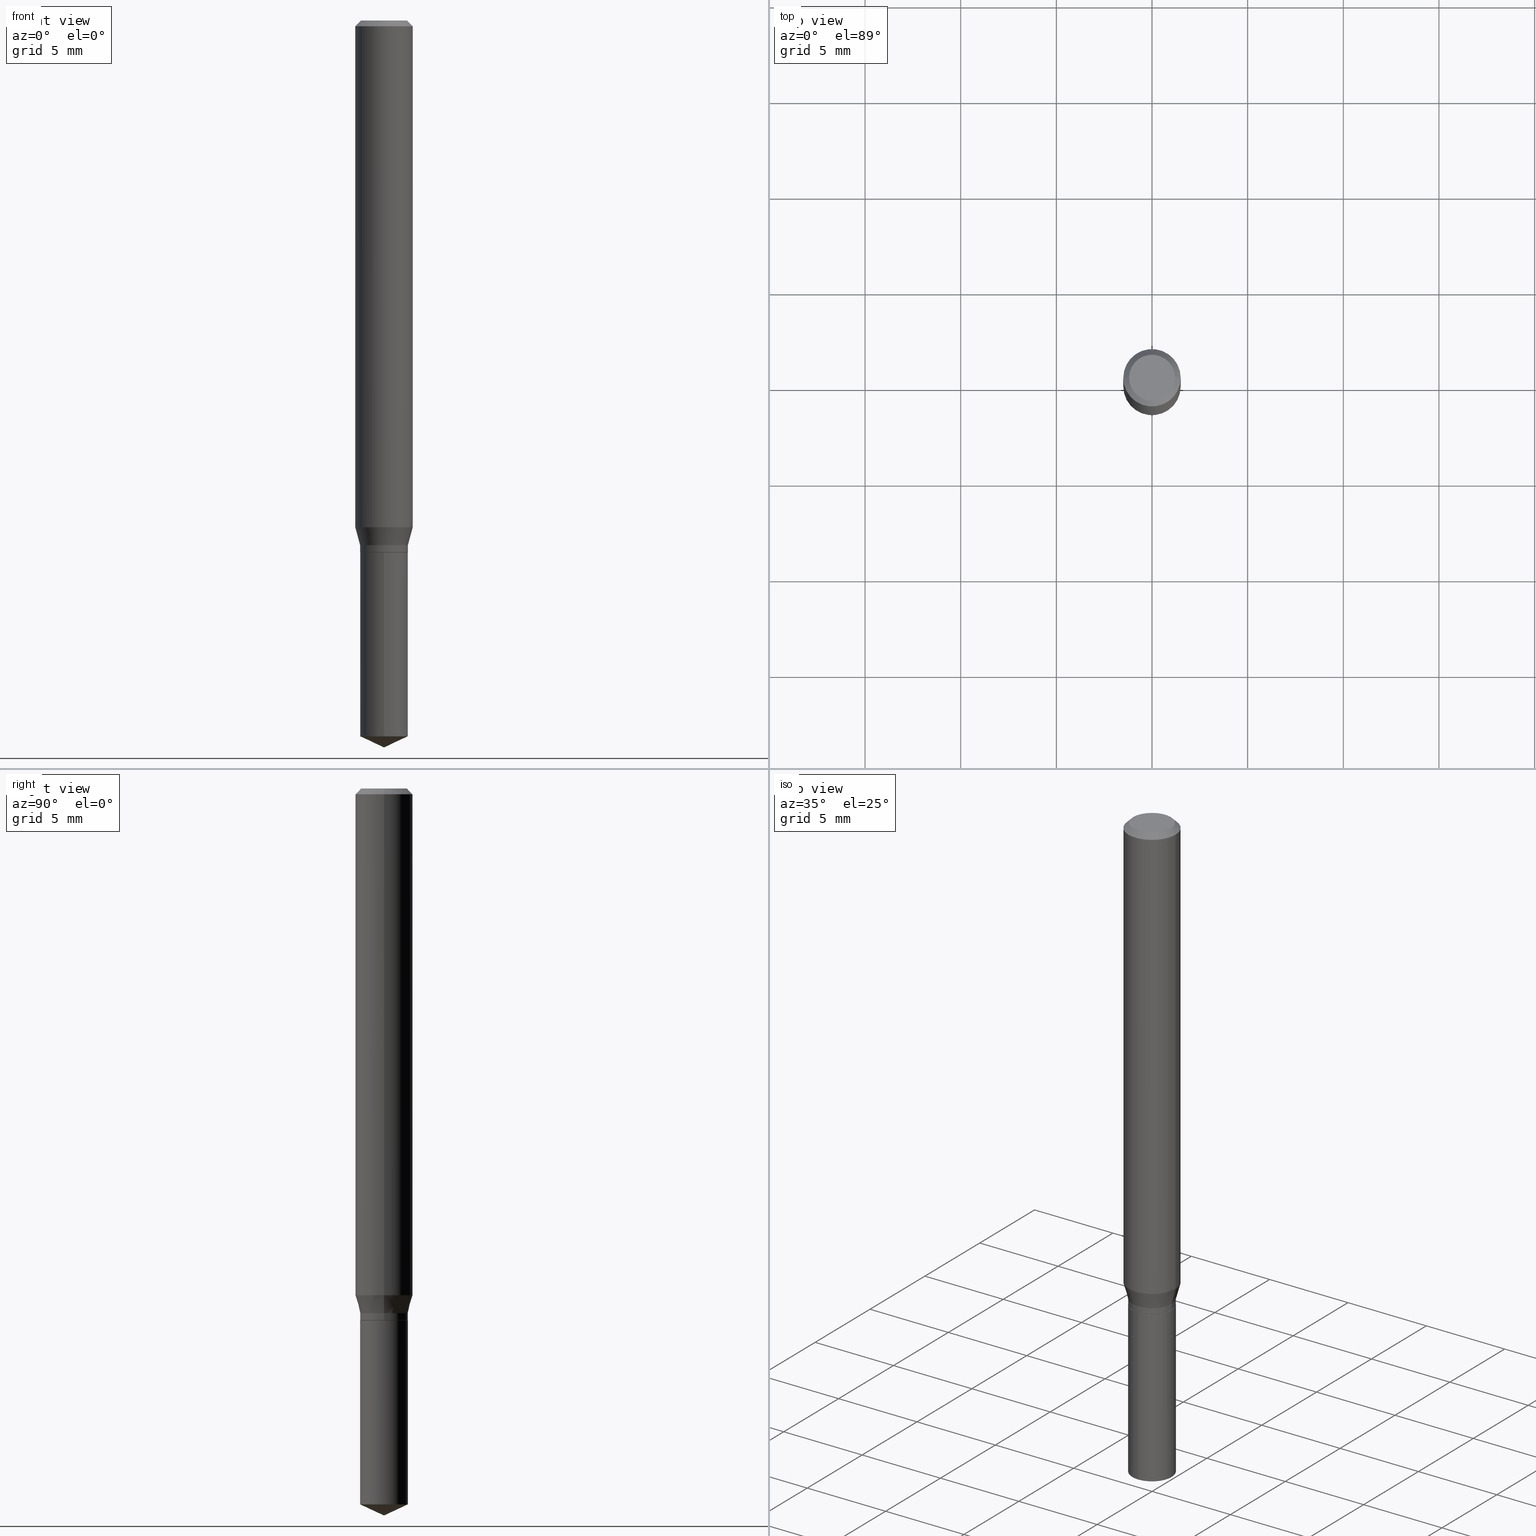
[diagram: canonical four-view strip — front | top / right | iso, engineering-drawing reading convention]
A machine part, canonical four-view strip (front | top / right | iso — engineering-drawing reading convention). The complete STEP part file that produces these views, byte-faithful:
ISO-10303-21;
HEADER;
FILE_DESCRIPTION (( 'STEP AP203' ),
    '1' );
FILE_NAME ('08389.STEP',
    '2024-04-24T14:49:38',
    ( '' ),
    ( '' ),
    'SwSTEP 2.0',
    'SolidWorks 2023',
    '' );
FILE_SCHEMA (( 'CONFIG_CONTROL_DESIGN' ));
ENDSEC;

DATA;
#1 = CARTESIAN_POINT ( 'NONE',  ( 2.676565608369631794E-29, -3.821426325363822773E-15, -1.094499999999999806 ) ) ;
#2 = MECHANICAL_CONTEXT ( 'NONE', #117, 'mechanical' ) ;
#3 = EDGE_CURVE ( 'NONE', #60, #399, #104, .T. ) ;
#4 = DIRECTION ( 'NONE',  ( 1.000000000000000000, -6.982962677686261189E-15, 0.000000000000000000 ) ) ;
#5 = PERSON_AND_ORGANIZATION ( #252, #71 ) ;
#6 = CC_DESIGN_PERSON_AND_ORGANIZATION_ASSIGNMENT ( #115, #316, ( #22 ) ) ;
#7 =( CONVERSION_BASED_UNIT ( 'INCH', #457 ) LENGTH_UNIT ( ) NAMED_UNIT ( #43 ) );
#8 = ORIENTED_EDGE ( 'NONE', *, *, #413, .F. ) ;
#9 = DIRECTION ( 'NONE',  ( -2.445358326776455510E-29, 3.491639551644474585E-15, 1.000000000000000000 ) ) ;
#10 = ORIENTED_EDGE ( 'NONE', *, *, #45, .F. ) ;
#11 = ORIENTED_EDGE ( 'NONE', *, *, #249, .T. ) ;
#12 = ORIENTED_EDGE ( 'NONE', *, *, #235, .F. ) ;
#13 = AXIS2_PLACEMENT_3D ( 'NONE', #276, #9, #130 ) ;
#14 = CC_DESIGN_APPROVAL ( #183, ( #144 ) ) ;
#15 = VERTEX_POINT ( 'NONE', #25 ) ;
#16 = DIRECTION ( 'NONE',  ( 6.982962677686265922E-15, 1.000000000000000000, -3.491639551644474585E-15 ) ) ;
#17 = CARTESIAN_POINT ( 'NONE',  ( -0.05905000000000013016, -3.221827616442726183E-15, -1.042939299545446064 ) ) ;
#18 = ADVANCED_FACE ( 'NONE', ( #56 ), #198, .T. ) ;
#19 = ORIENTED_EDGE ( 'NONE', *, *, #58, .F. ) ;
#20 = ORIENTED_EDGE ( 'NONE', *, *, #161, .T. ) ;
#21 = CIRCLE ( 'NONE', #401, 0.04919999999999999374 ) ;
#22 = PRODUCT_DEFINITION_FORMATION_WITH_SPECIFIED_SOURCE ( 'ANY', '', #250, .NOT_KNOWN. ) ;
#23 = ADVANCED_FACE ( 'NONE', ( #237 ), #267, .T. ) ;
#24 = CARTESIAN_POINT ( 'NONE',  ( 0.04870000000000000023, -4.161496607767143501E-15, -1.094499999999999806 ) ) ;
#25 = CARTESIAN_POINT ( 'NONE',  ( 3.658500592690254185E-29, -5.223841933215297403E-15, -1.496099999999999985 ) ) ;
#26 = CARTESIAN_POINT ( 'NONE',  ( -0.04870000000000000023, -3.475392013048653833E-15, -1.094499999999999806 ) ) ;
#27 = EDGE_CURVE ( 'NONE', #210, #135, #28, .T. ) ;
#28 = CIRCLE ( 'NONE', #277, 0.05905000000000013016 ) ;
#29 = DIRECTION ( 'NONE',  ( -2.445468806185136597E-29, 3.491481338843145583E-15, 1.000000000000000000 ) ) ;
#30 = CIRCLE ( 'NONE', #272, 0.04919999999999999374 ) ;
#31 = DIRECTION ( 'NONE',  ( 1.000000000000000000, -6.982962677686261189E-15, 0.000000000000000000 ) ) ;
#32 = DIRECTION ( 'NONE',  ( 1.000000000000000000, -6.982962677686266711E-15, 4.876176775795935793E-29 ) ) ;
#33 = DIRECTION ( 'NONE',  ( -2.445468806185136597E-29, 3.491481338843145583E-15, 1.000000000000000000 ) ) ;
#34 = DIRECTION ( 'NONE',  ( -2.445468806185136597E-29, 3.491481338843145583E-15, 1.000000000000000000 ) ) ;
#35 = CIRCLE ( 'NONE', #167, 0.04919999999999999374 ) ;
#36 = CIRCLE ( 'NONE', #13, 0.04920000000000000068 ) ;
#37 = CARTESIAN_POINT ( 'NONE',  ( 2.675342873966538993E-29, -3.819680584694400481E-15, -1.093999999999999861 ) ) ;
#38 = CALENDAR_DATE ( 2024, 24, 4 ) ;
#39 =( NAMED_UNIT ( * ) PLANE_ANGLE_UNIT ( ) SI_UNIT ( $, .RADIAN. ) );
#40 = PERSON_AND_ORGANIZATION ( #252, #71 ) ;
#41 = AXIS2_PLACEMENT_3D ( 'NONE', #164, #427, #86 ) ;
#42 = VECTOR ( 'NONE', #437, 39.37007874015748143 ) ;
#43 = DIMENSIONAL_EXPONENTS ( 1.000000000000000000, 0.000000000000000000, 0.000000000000000000, 0.000000000000000000, 0.000000000000000000, 0.000000000000000000, 0.000000000000000000 ) ;
#44 = EDGE_LOOP ( 'NONE', ( #301, #20, #269, #132 ) ) ;
#45 = EDGE_CURVE ( 'NONE', #224, #275, #311, .T. ) ;
#46 = DIRECTION ( 'NONE',  ( -2.438088387897960049E-29, 3.491481338843145188E-15, 1.000000000000000000 ) ) ;
#47 = EDGE_LOOP ( 'NONE', ( #251, #19, #221, #247 ) ) ;
#48 = CONICAL_SURFACE ( 'NONE', #361, 0.05904999999999999832, 0.7853981633974450594 ) ;
#49 = LOCAL_TIME ( 10, 49, 38.00000000000000000, #78 ) ;
#50 = ORIENTED_EDGE ( 'NONE', *, *, #490, .F. ) ;
#51 = PLANE ( 'NONE',  #178 ) ;
#52 = EDGE_LOOP ( 'NONE', ( #181, #137, #431, #392 ) ) ;
#53 = ORIENTED_EDGE ( 'NONE', *, *, #245, .F. ) ;
#54 = EDGE_CURVE ( 'NONE', #224, #113, #488, .T. ) ;
#55 = VERTEX_POINT ( 'NONE', #329 ) ;
#56 = FACE_OUTER_BOUND ( 'NONE', #176, .T. ) ;
#57 = APPROVAL ( #385, 'UNSPECIFIED' ) ;
#58 = EDGE_CURVE ( 'NONE', #275, #224, #334, .T. ) ;
#59 = AXIS2_PLACEMENT_3D ( 'NONE', #382, #310, #335 ) ;
#60 = VERTEX_POINT ( 'NONE', #370 ) ;
#61 = AXIS2_PLACEMENT_3D ( 'NONE', #184, #403, #325 ) ;
#62 = ORIENTED_EDGE ( 'NONE', *, *, #477, .T. ) ;
#63 = EDGE_CURVE ( 'NONE', #134, #60, #35, .T. ) ;
#64 = FACE_OUTER_BOUND ( 'NONE', #52, .T. ) ;
#65 = EDGE_LOOP ( 'NONE', ( #394, #187, #356, #50 ) ) ;
#66 = CARTESIAN_POINT ( 'NONE',  ( 3.602519278119375735E-29, -5.143562398791767883E-15, -1.473157663218774172 ) ) ;
#67 = DIRECTION ( 'NONE',  ( -2.445468806185136877E-29, 3.491481338843145188E-15, 1.000000000000000000 ) ) ;
#68 = FACE_OUTER_BOUND ( 'NONE', #211, .T. ) ;
#69 = AXIS2_PLACEMENT_3D ( 'NONE', #1, #202, #4 ) ;
#70 = EDGE_LOOP ( 'NONE', ( #428, #331 ) ) ;
#71 = ORGANIZATION ( 'UNSPECIFIED', 'UNSPECIFIED', '' ) ;
#72 = LINE ( 'NONE', #228, #109 ) ;
#73 = DIRECTION ( 'NONE',  ( 1.000000000000000000, -6.982962677686262766E-15, 0.000000000000000000 ) ) ;
#74 = CARTESIAN_POINT ( 'NONE',  ( -0.04919999999999999374, -3.420165375554974851E-15, -1.079699999999999882 ) ) ;
#75 = ORIENTED_EDGE ( 'NONE', *, *, #459, .F. ) ;
#76 = LINE ( 'NONE', #271, #326 ) ;
#77 = DIRECTION ( 'NONE',  ( -2.445358326776455510E-29, 3.491639551644474585E-15, 1.000000000000000000 ) ) ;
#78 = COORDINATED_UNIVERSAL_TIME_OFFSET ( 5, 0, .BEHIND. ) ;
#79 = CARTESIAN_POINT ( 'NONE',  ( 4.132873053354867254E-48, -5.900647395337818946E-34, -1.690012582823346072E-19 ) ) ;
#80 = EDGE_CURVE ( 'NONE', #219, #484, #102, .T. ) ;
#81 = DIRECTION ( 'NONE',  ( 0.000000000000000000, 0.000000000000000000, 1.000000000000000000 ) ) ;
#82 = CARTESIAN_POINT ( 'NONE',  ( 3.658744552762151624E-29, -5.223495605393188568E-15, -1.496099999999999985 ) ) ;
#83 = AXIS2_PLACEMENT_3D ( 'NONE', #186, #332, #328 ) ;
#84 = CALENDAR_DATE ( 2024, 24, 4 ) ;
#85 = ORIENTED_EDGE ( 'NONE', *, *, #58, .T. ) ;
#86 = DIRECTION ( 'NONE',  ( 1.000000000000000000, -6.982962677686262766E-15, 0.000000000000000000 ) ) ;
#87 = ADVANCED_FACE ( 'NONE', ( #243 ), #374, .T. ) ;
#88 = ORIENTED_EDGE ( 'NONE', *, *, #90, .T. ) ;
#89 = ORIENTED_EDGE ( 'NONE', *, *, #128, .F. ) ;
#90 = EDGE_CURVE ( 'NONE', #318, #355, #185, .T. ) ;
#91 = VECTOR ( 'NONE', #188, 39.37007874015748143 ) ;
#92 = AXIS2_PLACEMENT_3D ( 'NONE', #371, #191, #204 ) ;
#93 = LOCAL_TIME ( 10, 49, 38.00000000000000000, #126 ) ;
#94 = ORIENTED_EDGE ( 'NONE', *, *, #434, .T. ) ;
#95 = DIRECTION ( 'NONE',  ( -1.000000000000000000, 6.982962677686265922E-15, -4.876176775795935793E-29 ) ) ;
#96 = SHAPE_DEFINITION_REPRESENTATION ( #133, #402 ) ;
#97 = CARTESIAN_POINT ( 'NONE',  ( 2.676565608369631794E-29, -3.821426325363822773E-15, -1.094499999999999806 ) ) ;
#98 = EDGE_LOOP ( 'NONE', ( #414, #230, #175 ) ) ;
#99 = ORIENTED_EDGE ( 'NONE', *, *, #483, .F. ) ;
#100 = ORIENTED_EDGE ( 'NONE', *, *, #256, .T. ) ;
#101 = ORIENTED_EDGE ( 'NONE', *, *, #249, .F. ) ;
#102 = CIRCLE ( 'NONE', #69, 0.04870000000000000023 ) ;
#103 = LINE ( 'NONE', #26, #400 ) ;
#104 = LINE ( 'NONE', #259, #195 ) ;
#105 = DIRECTION ( 'NONE',  ( -2.445468806185136597E-29, 3.491481338843145583E-15, 1.000000000000000000 ) ) ;
#106 = DIRECTION ( 'NONE',  ( 1.000000000000000000, -6.982962677686262766E-15, 0.000000000000000000 ) ) ;
#107 = DIRECTION ( 'NONE',  ( -6.982962677686266711E-15, -1.000000000000000000, 3.520397390770451109E-15 ) ) ;
#108 = CARTESIAN_POINT ( 'NONE',  ( 0.04919999999999999374, -4.113314165291107636E-15, -1.079699999999999882 ) ) ;
#109 = VECTOR ( 'NONE', #482, 39.37007874015748143 ) ;
#110 = VECTOR ( 'NONE', #485, 39.37007874015748143 ) ;
#111 = FACE_OUTER_BOUND ( 'NONE', #146, .T. ) ;
#112 = LINE ( 'NONE', #74, #298 ) ;
#113 = VERTEX_POINT ( 'NONE', #449 ) ;
#114 = DIRECTION ( 'NONE',  ( 1.000000000000000000, -6.982962677686266711E-15, 4.876176775795935793E-29 ) ) ;
#115 = PERSON_AND_ORGANIZATION ( #252, #71 ) ;
#116 = CARTESIAN_POINT ( 'NONE',  ( 2.676565608369631794E-29, -3.821426325363822773E-15, -1.094499999999999806 ) ) ;
#117 = APPLICATION_CONTEXT ( 'configuration controlled 3d designs of mechanical parts and assemblies' ) ;
#118 = DIRECTION ( 'NONE',  ( -6.982962677686266711E-15, -1.000000000000000000, 3.520397390770451109E-15 ) ) ;
#119 = DATE_TIME_ROLE ( 'classification_date' ) ;
#120 = AXIS2_PLACEMENT_3D ( 'NONE', #287, #339, #309 ) ;
#121 = CC_DESIGN_DATE_AND_TIME_ASSIGNMENT ( #336, #380, ( #144 ) ) ;
#122 = AXIS2_PLACEMENT_3D ( 'NONE', #376, #226, #189 ) ;
#123 = ADVANCED_FACE ( 'NONE', ( #158 ), #452, .T. ) ;
#124 = DIRECTION ( 'NONE',  ( -2.445468806185136877E-29, 3.491481338843145188E-15, 1.000000000000000000 ) ) ;
#125 = CARTESIAN_POINT ( 'NONE',  ( 0.05904999999999999832, -4.463468013801466955E-16, -0.01181000000000007565 ) ) ;
#126 = COORDINATED_UNIVERSAL_TIME_OFFSET ( 5, 0, .BEHIND. ) ;
#127 = DIRECTION ( 'NONE',  ( 2.445468806185136597E-29, -3.491481338843145583E-15, -1.000000000000000000 ) ) ;
#128 = EDGE_CURVE ( 'NONE', #134, #300, #76, .T. ) ;
#129 = VERTEX_POINT ( 'NONE', #418 ) ;
#130 = DIRECTION ( 'NONE',  ( -6.982962677686265922E-15, -1.000000000000000000, 2.776268286244170082E-15 ) ) ;
#131 = CONICAL_SURFACE ( 'NONE', #312, 84.42940631927440620, 1.134464013796316229 ) ;
#132 = ORIENTED_EDGE ( 'NONE', *, *, #256, .F. ) ;
#133 = PRODUCT_DEFINITION_SHAPE ( 'NONE', 'NONE',  #144 ) ;
#134 = VERTEX_POINT ( 'NONE', #354 ) ;
#135 = VERTEX_POINT ( 'NONE', #17 ) ;
#136 = DIRECTION ( 'NONE',  ( 1.000000000000000000, -6.982962677686265922E-15, 4.876176775795935793E-29 ) ) ;
#137 = ORIENTED_EDGE ( 'NONE', *, *, #138, .T. ) ;
#138 = EDGE_CURVE ( 'NONE', #135, #55, #469, .T. ) ;
#139 = CONICAL_SURFACE ( 'NONE', #446, 84.42940631927440620, 1.134464013796316229 ) ;
#140 = EDGE_LOOP ( 'NONE', ( #156, #465, #294, #391 ) ) ;
#141 = CARTESIAN_POINT ( 'NONE',  ( 2.888098660104664642E-31, -4.123439461173780879E-17, -0.01181000000000007565 ) ) ;
#142 = EDGE_CURVE ( 'NONE', #113, #55, #439, .T. ) ;
#143 = FACE_OUTER_BOUND ( 'NONE', #429, .T. ) ;
#144 = PRODUCT_DEFINITION ( 'UNKNOWN', '', #22, #150 ) ;
#145 = LINE ( 'NONE', #285, #42 ) ;
#146 = EDGE_LOOP ( 'NONE', ( #280, #100, #393, #422 ) ) ;
#147 = DIRECTION ( 'NONE',  ( 1.000000000000000000, -6.982962677686262766E-15, 0.000000000000000000 ) ) ;
#148 = CARTESIAN_POINT ( 'NONE',  ( -3.435617637421283351E-16, -0.04920000000000515628, -1.473157663218773727 ) ) ;
#149 = CC_DESIGN_PERSON_AND_ORGANIZATION_ASSIGNMENT ( #40, #200, ( #250 ) ) ;
#150 = DESIGN_CONTEXT ( 'detailed design', #217, 'design' ) ;
#151 = LINE ( 'NONE', #108, #196 ) ;
#152 = CARTESIAN_POINT ( 'NONE',  ( 2.640372670038092045E-29, -3.769752401548943901E-15, -1.079699999999999882 ) ) ;
#153 = CLOSED_SHELL ( 'NONE', ( #87, #262, #397, #18, #216 ) ) ;
#154 = CARTESIAN_POINT ( 'NONE',  ( 3.658500592690254185E-29, -5.223841933215297403E-15, -1.496099999999999985 ) ) ;
#155 = VECTOR ( 'NONE', #67, 39.37007874015748143 ) ;
#156 = ORIENTED_EDGE ( 'NONE', *, *, #138, .F. ) ;
#157 = VECTOR ( 'NONE', #369, 39.37007874015748143 ) ;
#158 = FACE_OUTER_BOUND ( 'NONE', #286, .T. ) ;
#159 = APPROVAL_ROLE ( '' ) ;
#160 = PLANE ( 'NONE',  #173 ) ;
#161 = EDGE_CURVE ( 'NONE', #484, #219, #253, .T. ) ;
#162 = DATE_AND_TIME ( #240, #49 ) ;
#163 = CC_DESIGN_PERSON_AND_ORGANIZATION_ASSIGNMENT ( #205, #197, ( #144 ) ) ;
#164 = CARTESIAN_POINT ( 'NONE',  ( 2.675342873966538993E-29, -3.819680584694400481E-15, -1.093999999999999861 ) ) ;
#165 = DIRECTION ( 'NONE',  ( -2.445468806185136597E-29, 3.491481338843145583E-15, 1.000000000000000000 ) ) ;
#166 = APPROVAL_ROLE ( '' ) ;
#167 = AXIS2_PLACEMENT_3D ( 'NONE', #37, #410, #199 ) ;
#168 = VECTOR ( 'NONE', #420, 39.37007874015748143 ) ;
#169 = LINE ( 'NONE', #315, #168 ) ;
#170 = COORDINATED_UNIVERSAL_TIME_OFFSET ( 5, 0, .BEHIND. ) ;
#171 =( LENGTH_UNIT ( ) NAMED_UNIT ( * ) SI_UNIT ( $, .METRE. ) );
#172 = ORIENTED_EDGE ( 'NONE', *, *, #308, .T. ) ;
#173 = AXIS2_PLACEMENT_3D ( 'NONE', #79, #190, #95 ) ;
#174 = ORIENTED_EDGE ( 'NONE', *, *, #308, .F. ) ;
#175 = ORIENTED_EDGE ( 'NONE', *, *, #90, .F. ) ;
#176 = EDGE_LOOP ( 'NONE', ( #75, #62, #398, #174 ) ) ;
#177 = ADVANCED_FACE ( 'NONE', ( #143 ), #160, .F. ) ;
#178 = AXIS2_PLACEMENT_3D ( 'NONE', #353, #214, #16 ) ;
#179 = LOCAL_TIME ( 10, 49, 38.00000000000000000, #180 ) ;
#180 = COORDINATED_UNIVERSAL_TIME_OFFSET ( 5, 0, .BEHIND. ) ;
#181 = ORIENTED_EDGE ( 'NONE', *, *, #27, .T. ) ;
#182 = ORIENTED_EDGE ( 'NONE', *, *, #142, .T. ) ;
#183 = APPROVAL ( #344, 'UNSPECIFIED' ) ;
#184 = CARTESIAN_POINT ( 'NONE',  ( 2.888098660104664642E-31, -4.123439461173780879E-17, -0.01181000000000007565 ) ) ;
#185 = CIRCLE ( 'NONE', #408, 0.04920000000000000068 ) ;
#186 = CARTESIAN_POINT ( 'NONE',  ( 0.000000000000000000, 0.000000000000000000, 0.000000000000000000 ) ) ;
#187 = ORIENTED_EDGE ( 'NONE', *, *, #359, .T. ) ;
#188 = DIRECTION ( 'NONE',  ( 0.7071067811865452413, -7.319954787623248157E-15, -0.7071067811865497932 ) ) ;
#189 = DIRECTION ( 'NONE',  ( -1.000000000000000000, 6.982962677686266711E-15, 0.000000000000000000 ) ) ;
#190 = DIRECTION ( 'NONE',  ( 2.438088387897960049E-29, -3.491481338843145188E-15, -1.000000000000000000 ) ) ;
#191 = DIRECTION ( 'NONE',  ( -2.445468806185136597E-29, 3.491481338843145583E-15, 1.000000000000000000 ) ) ;
#192 = CARTESIAN_POINT ( 'NONE',  ( 0.000000000000000000, 0.000000000000000000, 0.000000000000000000 ) ) ;
#193 = MANIFOLD_SOLID_BREP ( 'Body-Move/Copy2[1]', #153 ) ;
#194 = DIRECTION ( 'NONE',  ( 1.000000000000000000, -6.982962677686265133E-15, 0.000000000000000000 ) ) ;
#195 = VECTOR ( 'NONE', #208, 39.37007874015748143 ) ;
#196 = VECTOR ( 'NONE', #443, 39.37007874015747433 ) ;
#197 = PERSON_AND_ORGANIZATION_ROLE ( 'creator' ) ;
#198 = CYLINDRICAL_SURFACE ( 'NONE', #487, 0.04920000000000000068 ) ;
#199 = DIRECTION ( 'NONE',  ( 1.000000000000000000, -6.982962677686262766E-15, 0.000000000000000000 ) ) ;
#200 = PERSON_AND_ORGANIZATION_ROLE ( 'design_owner' ) ;
#201 = PERSON_AND_ORGANIZATION ( #252, #71 ) ;
#202 = DIRECTION ( 'NONE',  ( -2.445468806185136597E-29, 3.491481338843145583E-15, 1.000000000000000000 ) ) ;
#203 = FACE_OUTER_BOUND ( 'NONE', #47, .T. ) ;
#204 = DIRECTION ( 'NONE',  ( 1.000000000000000000, -6.982962677686261189E-15, 0.000000000000000000 ) ) ;
#205 = PERSON_AND_ORGANIZATION ( #252, #71 ) ;
#206 = CONICAL_SURFACE ( 'NONE', #92, 0.04870000000000000023, 0.7853981633974056464 ) ;
#207 = DIRECTION ( 'NONE',  ( 1.000000000000000000, 0.000000000000000000, 0.000000000000000000 ) ) ;
#208 = DIRECTION ( 'NONE',  ( -2.445468806185136877E-29, 3.491481338843145188E-15, 1.000000000000000000 ) ) ;
#209 = ADVANCED_FACE ( 'NONE', ( #475 ), #320, .F. ) ;
#210 = VERTEX_POINT ( 'NONE', #279 ) ;
#211 = EDGE_LOOP ( 'NONE', ( #358, #470, #364, #213 ) ) ;
#212 = DIRECTION ( 'NONE',  ( 6.439704144417030353E-15, 0.9063077870366522681, 0.4226182617406943898 ) ) ;
#213 = ORIENTED_EDGE ( 'NONE', *, *, #366, .F. ) ;
#214 = DIRECTION ( 'NONE',  ( 2.445358326776454949E-29, -3.491639551644474585E-15, -1.000000000000000000 ) ) ;
#215 = VERTEX_POINT ( 'NONE', #430 ) ;
#216 = ADVANCED_FACE ( 'NONE', ( #396 ), #51, .F. ) ;
#217 = APPLICATION_CONTEXT ( 'configuration controlled 3d designs of mechanical parts and assemblies' ) ;
#218 = EDGE_CURVE ( 'NONE', #399, #300, #30, .T. ) ;
#219 = VERTEX_POINT ( 'NONE', #24 ) ;
#220 = ORIENTED_EDGE ( 'NONE', *, *, #366, .T. ) ;
#221 = ORIENTED_EDGE ( 'NONE', *, *, #413, .T. ) ;
#222 = CIRCLE ( 'NONE', #61, 0.05904999999999999832 ) ;
#223 = AXIS2_PLACEMENT_3D ( 'NONE', #387, #81, #207 ) ;
#224 = VERTEX_POINT ( 'NONE', #357 ) ;
#225 = CARTESIAN_POINT ( 'NONE',  ( 2.640372670038092045E-29, -3.769752401548943901E-15, -1.079699999999999882 ) ) ;
#226 = DIRECTION ( 'NONE',  ( 2.445468806185136597E-29, -3.491481338843145583E-15, -1.000000000000000000 ) ) ;
#227 = ORIENTED_EDGE ( 'NONE', *, *, #218, .T. ) ;
#228 = CARTESIAN_POINT ( 'NONE',  ( -0.05904999999999999832, 3.711095515056362547E-16, -0.01181000000000007565 ) ) ;
#229 = DIRECTION ( 'NONE',  ( -2.445358326776455510E-29, 3.491639551644474585E-15, 1.000000000000000000 ) ) ;
#230 = ORIENTED_EDGE ( 'NONE', *, *, #245, .T. ) ;
#231 = DIRECTION ( 'NONE',  ( 1.000000000000000000, -6.982962677686266711E-15, 0.000000000000000000 ) ) ;
#232 = CARTESIAN_POINT ( 'NONE',  ( 2.550475523782964648E-29, -3.641403101909066859E-15, -1.042939299545446064 ) ) ;
#233 = FACE_OUTER_BOUND ( 'NONE', #44, .T. ) ;
#234 = CARTESIAN_POINT ( 'NONE',  ( 2.640372670038092045E-29, -3.769752401548943901E-15, -1.079699999999999882 ) ) ;
#235 = EDGE_CURVE ( 'NONE', #399, #135, #112, .T. ) ;
#236 = CARTESIAN_POINT ( 'NONE',  ( -9.261532836068574158E-28, 1.322424553111868898E-13, 37.87397874015748300 ) ) ;
#237 = FACE_OUTER_BOUND ( 'NONE', #140, .T. ) ;
#238 = DIRECTION ( 'NONE',  ( -2.445468806185136597E-29, 3.491481338843145583E-15, 1.000000000000000000 ) ) ;
#239 = AXIS2_PLACEMENT_3D ( 'NONE', #141, #476, #231 ) ;
#240 = CALENDAR_DATE ( 2024, 24, 4 ) ;
#241 = EDGE_CURVE ( 'NONE', #300, #399, #21, .T. ) ;
#242 = PERSON_AND_ORGANIZATION ( #252, #71 ) ;
#243 = FACE_OUTER_BOUND ( 'NONE', #466, .T. ) ;
#244 =( NAMED_UNIT ( * ) SI_UNIT ( $, .STERADIAN. ) SOLID_ANGLE_UNIT ( ) );
#245 = EDGE_CURVE ( 'NONE', #15, #355, #383, .T. ) ;
#246 = APPROVAL_DATE_TIME ( #346, #183 ) ;
#247 = ORIENTED_EDGE ( 'NONE', *, *, #426, .T. ) ;
#248 = ORIENTED_EDGE ( 'NONE', *, *, #63, .T. ) ;
#249 = EDGE_CURVE ( 'NONE', #129, #215, #36, .T. ) ;
#250 = PRODUCT ( '08389', '08389', '', ( #2 ) ) ;
#251 = ORIENTED_EDGE ( 'NONE', *, *, #54, .F. ) ;
#252 = PERSON ( 'UNSPECIFIED', 'UNSPECIFIED', 'UNSPECIFIED', ('UNSPECIFIED'), ('UNSPECIFIED'), ('UNSPECIFIED') ) ;
#253 = CIRCLE ( 'NONE', #481, 0.04870000000000000023 ) ;
#254 = CIRCLE ( 'NONE', #362, 0.04920000000000000068 ) ;
#255 = DATE_AND_TIME ( #323, #179 ) ;
#256 = EDGE_CURVE ( 'NONE', #60, #134, #288, .T. ) ;
#257 = CONICAL_SURFACE ( 'NONE', #378, 0.04919999999999999374, 0.2617993877991500740 ) ;
#258 = DIRECTION ( 'NONE',  ( -2.445358326776455510E-29, 3.491639551644474585E-15, 1.000000000000000000 ) ) ;
#259 = CARTESIAN_POINT ( 'NONE',  ( -0.04919999999999999374, 3.495870259939692470E-16, -2.420116064405413417E-30 ) ) ;
#260 = DIRECTION ( 'NONE',  ( 1.000000000000000000, -6.982962677686265133E-15, 0.000000000000000000 ) ) ;
#261 = APPROVAL ( #342, 'UNSPECIFIED' ) ;
#262 = ADVANCED_FACE ( 'NONE', ( #419 ), #131, .T. ) ;
#263 = CARTESIAN_POINT ( 'NONE',  ( 3.495870259940053373E-16, 0.04919999999999487283, -1.473157663218774394 ) ) ;
#264 = DIRECTION ( 'NONE',  ( 1.000000000000000000, -6.982962677686266711E-15, 4.876185090822587894E-29 ) ) ;
#265 = AXIS2_PLACEMENT_3D ( 'NONE', #365, #105, #260 ) ;
#266 = CYLINDRICAL_SURFACE ( 'NONE', #83, 0.05905000000000006771 ) ;
#267 = CYLINDRICAL_SURFACE ( 'NONE', #461, 0.05905000000000006771 ) ;
#268 = DIRECTION ( 'NONE',  ( -6.982962677686265922E-15, -1.000000000000000000, 5.552536572488340164E-15 ) ) ;
#269 = ORIENTED_EDGE ( 'NONE', *, *, #490, .T. ) ;
#270 = PERSON_AND_ORGANIZATION ( #252, #71 ) ;
#271 = CARTESIAN_POINT ( 'NONE',  ( 0.04919999999999999374, -3.435617637421642776E-16, 2.399078973691600121E-30 ) ) ;
#272 = AXIS2_PLACEMENT_3D ( 'NONE', #225, #291, #106 ) ;
#273 = COORDINATED_UNIVERSAL_TIME_OFFSET ( 5, 0, .BEHIND. ) ;
#274 = APPROVAL_PERSON_ORGANIZATION ( #5, #261, #159 ) ;
#275 = VERTEX_POINT ( 'NONE', #406 ) ;
#276 = CARTESIAN_POINT ( 'NONE',  ( 2.676565608369631794E-29, -3.821426325363822773E-15, -1.094499999999999806 ) ) ;
#277 = AXIS2_PLACEMENT_3D ( 'NONE', #232, #165, #194 ) ;
#278 = AXIS2_PLACEMENT_3D ( 'NONE', #192, #29, #32 ) ;
#279 = CARTESIAN_POINT ( 'NONE',  ( 0.05905000000000013016, -4.053747048026441779E-15, -1.042939299545446064 ) ) ;
#280 = ORIENTED_EDGE ( 'NONE', *, *, #3, .F. ) ;
#281 = DIRECTION ( 'NONE',  ( -2.445358326776455510E-29, 3.491639551644474585E-15, 1.000000000000000000 ) ) ;
#282 = CARTESIAN_POINT ( 'NONE',  ( 2.676565608369631794E-29, -3.821426325363822773E-15, -1.094499999999999806 ) ) ;
#283 = ADVANCED_FACE ( 'NONE', ( #233 ), #206, .T. ) ;
#284 = APPROVAL_DATE_TIME ( #255, #57 ) ;
#285 = CARTESIAN_POINT ( 'NONE',  ( 0.04870000000000000023, -4.161496607767143501E-15, -1.094499999999999806 ) ) ;
#286 = EDGE_LOOP ( 'NONE', ( #248, #479, #468, #89 ) ) ;
#287 = CARTESIAN_POINT ( 'NONE',  ( 2.676565608369631794E-29, -3.821426325363822773E-15, -1.094499999999999806 ) ) ;
#288 = CIRCLE ( 'NONE', #41, 0.04919999999999999374 ) ;
#289 = CC_DESIGN_SECURITY_CLASSIFICATION ( #379, ( #22 ) ) ;
#290 = LINE ( 'NONE', #478, #110 ) ;
#291 = DIRECTION ( 'NONE',  ( -2.445468806185136597E-29, 3.491481338843145583E-15, 1.000000000000000000 ) ) ;
#292 = EDGE_CURVE ( 'NONE', #210, #113, #169, .T. ) ;
#293 = DIRECTION ( 'NONE',  ( -0.7071067811865173747, 7.493145998870245297E-15, 0.7071067811865776598 ) ) ;
#294 = ORIENTED_EDGE ( 'NONE', *, *, #292, .T. ) ;
#295 = ADVANCED_FACE ( 'NONE', ( #203 ), #48, .T. ) ;
#296 = CARTESIAN_POINT ( 'NONE',  ( 8.265746106709734507E-48, -1.180129479067563789E-33, -3.380025165646692144E-19 ) ) ;
#297 = DIRECTION ( 'NONE',  ( -2.445468806185136597E-29, 3.491481338843145583E-15, 1.000000000000000000 ) ) ;
#298 = VECTOR ( 'NONE', #436, 39.37007874015747433 ) ;
#299 = CARTESIAN_POINT ( 'NONE',  ( -0.04919999999999999374, -3.445129467127703536E-15, -1.079699999999999882 ) ) ;
#300 = VERTEX_POINT ( 'NONE', #423 ) ;
#301 = ORIENTED_EDGE ( 'NONE', *, *, #359, .F. ) ;
#302 = APPROVAL_DATE_TIME ( #417, #261 ) ;
#303 = DIRECTION ( 'NONE',  ( 1.000000000000000000, -6.982962677686266711E-15, 4.876176775795936353E-29 ) ) ;
#304 = DIRECTION ( 'NONE',  ( -2.445358326776455510E-29, 3.491639551644474585E-15, 1.000000000000000000 ) ) ;
#305 = DIRECTION ( 'NONE',  ( 1.000000000000000000, -6.982962677686262766E-15, 0.000000000000000000 ) ) ;
#306 = UNCERTAINTY_MEASURE_WITH_UNIT (LENGTH_MEASURE( 1.000000000000000082E-05 ), #7, 'distance_accuracy_value', 'NONE');
#307 = PERSON_AND_ORGANIZATION_ROLE ( 'classification_officer' ) ;
#308 = EDGE_CURVE ( 'NONE', #215, #129, #416, .T. ) ;
#309 = DIRECTION ( 'NONE',  ( -6.982962677686265922E-15, -1.000000000000000000, 2.776268286244170082E-15 ) ) ;
#310 = DIRECTION ( 'NONE',  ( -2.445468806185136597E-29, 3.491481338843145583E-15, 1.000000000000000000 ) ) ;
#311 = CIRCLE ( 'NONE', #59, 0.04724000000000000421 ) ;
#312 = AXIS2_PLACEMENT_3D ( 'NONE', #345, #304, #118 ) ;
#313 = PERSON_AND_ORGANIZATION ( #252, #71 ) ;
#314 = DIRECTION ( 'NONE',  ( -2.445468806185136597E-29, 3.491481338843145583E-15, 1.000000000000000000 ) ) ;
#315 = CARTESIAN_POINT ( 'NONE',  ( 0.05905000000000006771, -4.123439461173745257E-16, 2.879382386107503723E-30 ) ) ;
#316 = PERSON_AND_ORGANIZATION_ROLE ( 'design_supplier' ) ;
#317 = ORIENTED_EDGE ( 'NONE', *, *, #459, .T. ) ;
#318 = VERTEX_POINT ( 'NONE', #148 ) ;
#319 = ORIENTED_EDGE ( 'NONE', *, *, #54, .T. ) ;
#320 = PLANE ( 'NONE',  #453 ) ;
#321 = CONICAL_SURFACE ( 'NONE', #472, 0.04870000000000000023, 0.7853981633974056464 ) ;
#322 = LOCAL_TIME ( 10, 49, 38.00000000000000000, #170 ) ;
#323 = CALENDAR_DATE ( 2024, 24, 4 ) ;
#324 = LINE ( 'NONE', #330, #157 ) ;
#325 = DIRECTION ( 'NONE',  ( 1.000000000000000000, -6.982962677686266711E-15, 0.000000000000000000 ) ) ;
#326 = VECTOR ( 'NONE', #124, 39.37007874015748143 ) ;
#327 = APPROVAL_PERSON_ORGANIZATION ( #242, #57, #455 ) ;
#328 = DIRECTION ( 'NONE',  ( 1.000000000000000000, -6.982962677686266711E-15, 4.876176775795936353E-29 ) ) ;
#329 = CARTESIAN_POINT ( 'NONE',  ( -0.05904999999999999832, -1.421743262794061815E-15, -0.01181000000000007565 ) ) ;
#330 = CARTESIAN_POINT ( 'NONE',  ( -3.435617637421375056E-16, -0.04920000000000382401, -1.094499999999999806 ) ) ;
#331 = ORIENTED_EDGE ( 'NONE', *, *, #161, .F. ) ;
#332 = DIRECTION ( 'NONE',  ( -2.445468806185136597E-29, 3.491481338843145583E-15, 1.000000000000000000 ) ) ;
#333 = AXIS2_PLACEMENT_3D ( 'NONE', #296, #444, #264 ) ;
#334 = CIRCLE ( 'NONE', #333, 0.04724000000000000421 ) ;
#335 = DIRECTION ( 'NONE',  ( 1.000000000000000000, -6.982962677686266711E-15, 4.876185090822587894E-29 ) ) ;
#336 = DATE_AND_TIME ( #451, #93 ) ;
#337 = DIRECTION ( 'NONE',  ( -1.000000000000000000, 6.982962677686266711E-15, 0.000000000000000000 ) ) ;
#338 = EDGE_LOOP ( 'NONE', ( #12, #227, #220, #438 ) ) ;
#339 = DIRECTION ( 'NONE',  ( -2.445358326776455510E-29, 3.491639551644474585E-15, 1.000000000000000000 ) ) ;
#340 = DIRECTION ( 'NONE',  ( -6.982962677686265922E-15, -1.000000000000000000, 2.776268286244170082E-15 ) ) ;
#341 = PERSON_AND_ORGANIZATION_ROLE ( 'creator' ) ;
#342 = APPROVAL_STATUS ( 'not_yet_approved' ) ;
#343 = CARTESIAN_POINT ( 'NONE',  ( 0.000000000000000000, 0.000000000000000000, 0.000000000000000000 ) ) ;
#344 = APPROVAL_STATUS ( 'not_yet_approved' ) ;
#345 = CARTESIAN_POINT ( 'NONE',  ( -9.261532836068574158E-28, 1.322424553111868898E-13, 37.87397874015748300 ) ) ;
#346 = DATE_AND_TIME ( #84, #368 ) ;
#347 = EDGE_LOOP ( 'NONE', ( #11, #172 ) ) ;
#348 = MANIFOLD_SOLID_BREP ( 'Body-Move/Copy2[2]', #367 ) ;
#349 = VECTOR ( 'NONE', #212, 39.37007874015748143 ) ;
#350 = PRODUCT_RELATED_PRODUCT_CATEGORY ( 'detail', '', ( #250 ) ) ;
#351 = ADVANCED_FACE ( 'NONE', ( #363 ), #321, .T. ) ;
#352 = EDGE_LOOP ( 'NONE', ( #10, #319, #182, #8 ) ) ;
#353 = CARTESIAN_POINT ( 'NONE',  ( 2.676565608369631794E-29, -3.821426325363822773E-15, -1.094499999999999806 ) ) ;
#354 = CARTESIAN_POINT ( 'NONE',  ( 0.04919999999999999374, -4.163242348436565005E-15, -1.093999999999999861 ) ) ;
#355 = VERTEX_POINT ( 'NONE', #263 ) ;
#356 = ORIENTED_EDGE ( 'NONE', *, *, #63, .F. ) ;
#357 = CARTESIAN_POINT ( 'NONE',  ( 0.04724000000000000421, -3.852183633974369345E-16, -3.380025165621689721E-19 ) ) ;
#358 = ORIENTED_EDGE ( 'NONE', *, *, #241, .T. ) ;
#359 = EDGE_CURVE ( 'NONE', #484, #60, #103, .T. ) ;
#360 = DIRECTION ( 'NONE',  ( 1.000000000000000000, -6.982962677686261189E-15, 0.000000000000000000 ) ) ;
#361 = AXIS2_PLACEMENT_3D ( 'NONE', #456, #127, #337 ) ;
#362 = AXIS2_PLACEMENT_3D ( 'NONE', #66, #229, #268 ) ;
#363 = FACE_OUTER_BOUND ( 'NONE', #65, .T. ) ;
#364 = ORIENTED_EDGE ( 'NONE', *, *, #27, .F. ) ;
#365 = CARTESIAN_POINT ( 'NONE',  ( 2.550475523782964648E-29, -3.641403101909066859E-15, -1.042939299545446064 ) ) ;
#366 = EDGE_CURVE ( 'NONE', #300, #210, #151, .T. ) ;
#367 = CLOSED_SHELL ( 'NONE', ( #351, #467, #442, #433, #123, #421, #489, #23, #295, #177, #209, #283 ) ) ;
#368 = LOCAL_TIME ( 10, 49, 38.00000000000000000, #273 ) ;
#369 = DIRECTION ( 'NONE',  ( -2.445358326776455790E-29, 3.491639551644474585E-15, 1.000000000000000000 ) ) ;
#370 = CARTESIAN_POINT ( 'NONE',  ( -0.04919999999999999374, -3.445129467127703536E-15, -1.093999999999999861 ) ) ;
#371 = CARTESIAN_POINT ( 'NONE',  ( 2.676565608369631794E-29, -3.821426325363822773E-15, -1.094499999999999806 ) ) ;
#372 = CARTESIAN_POINT ( 'NONE',  ( 2.676565608369631794E-29, -3.821426325363822773E-15, -1.094499999999999806 ) ) ;
#373 = CC_DESIGN_PERSON_AND_ORGANIZATION_ASSIGNMENT ( #270, #307, ( #379 ) ) ;
#374 = CYLINDRICAL_SURFACE ( 'NONE', #120, 0.04920000000000000068 ) ;
#375 = CARTESIAN_POINT ( 'NONE',  ( 0.000000000000000000, 0.000000000000000000, 0.000000000000000000 ) ) ;
#376 = CARTESIAN_POINT ( 'NONE',  ( 2.888098660104664642E-31, -4.123439461173780879E-17, -0.01181000000000007565 ) ) ;
#377 = EDGE_LOOP ( 'NONE', ( #53, #94, #450 ) ) ;
#378 = AXIS2_PLACEMENT_3D ( 'NONE', #234, #297, #147 ) ;
#379 = SECURITY_CLASSIFICATION ( '', '', #415 ) ;
#380 = DATE_TIME_ROLE ( 'creation_date' ) ;
#381 = DIRECTION ( 'NONE',  ( -6.982962677686265922E-15, -1.000000000000000000, 5.552536572488340164E-15 ) ) ;
#382 = CARTESIAN_POINT ( 'NONE',  ( 8.265746106709734507E-48, -1.180129479067563789E-33, -3.380025165646692144E-19 ) ) ;
#383 = LINE ( 'NONE', #82, #349 ) ;
#384 = EDGE_CURVE ( 'NONE', #135, #210, #388, .T. ) ;
#385 = APPROVAL_STATUS ( 'not_yet_approved' ) ;
#386 = DIRECTION ( 'NONE',  ( -2.445358326776455510E-29, 3.491639551644474585E-15, 1.000000000000000000 ) ) ;
#387 = CARTESIAN_POINT ( 'NONE',  ( 0.000000000000000000, 0.000000000000000000, 0.000000000000000000 ) ) ;
#388 = CIRCLE ( 'NONE', #265, 0.05905000000000013016 ) ;
#389 = APPLICATION_PROTOCOL_DEFINITION ( 'international standard', 'config_control_design', 1994, #117 ) ;
#390 = APPROVAL_PERSON_ORGANIZATION ( #201, #183, #166 ) ;
#391 = ORIENTED_EDGE ( 'NONE', *, *, #426, .F. ) ;
#392 = ORIENTED_EDGE ( 'NONE', *, *, #292, .F. ) ;
#393 = ORIENTED_EDGE ( 'NONE', *, *, #128, .T. ) ;
#394 = ORIENTED_EDGE ( 'NONE', *, *, #80, .T. ) ;
#395 = AXIS2_PLACEMENT_3D ( 'NONE', #343, #314, #114 ) ;
#396 = FACE_OUTER_BOUND ( 'NONE', #347, .T. ) ;
#397 = ADVANCED_FACE ( 'NONE', ( #480 ), #139, .T. ) ;
#398 = ORIENTED_EDGE ( 'NONE', *, *, #483, .T. ) ;
#399 = VERTEX_POINT ( 'NONE', #299 ) ;
#400 = VECTOR ( 'NONE', #293, 39.37007874015748143 ) ;
#401 = AXIS2_PLACEMENT_3D ( 'NONE', #152, #238, #305 ) ;
#402 = ADVANCED_BREP_SHAPE_REPRESENTATION ( '08389', ( #193, #348, #223 ), #463 ) ;
#403 = DIRECTION ( 'NONE',  ( -2.445468806185136597E-29, 3.491481338843145583E-15, 1.000000000000000000 ) ) ;
#404 = CC_DESIGN_PERSON_AND_ORGANIZATION_ASSIGNMENT ( #313, #341, ( #22 ) ) ;
#405 = LINE ( 'NONE', #154, #462 ) ;
#406 = CARTESIAN_POINT ( 'NONE',  ( -0.04724000000000000421, 3.504923541997677355E-16, -3.380025165670481712E-19 ) ) ;
#407 = CYLINDRICAL_SURFACE ( 'NONE', #278, 0.04919999999999999374 ) ;
#408 = AXIS2_PLACEMENT_3D ( 'NONE', #447, #386, #381 ) ;
#409 = CONICAL_SURFACE ( 'NONE', #122, 0.05904999999999999832, 0.7853981633974450594 ) ;
#410 = DIRECTION ( 'NONE',  ( -2.445468806185136597E-29, 3.491481338843145583E-15, 1.000000000000000000 ) ) ;
#411 = FACE_OUTER_BOUND ( 'NONE', #338, .T. ) ;
#412 = DIRECTION ( 'NONE',  ( -2.445468806185136597E-29, 3.491481338843145583E-15, 1.000000000000000000 ) ) ;
#413 = EDGE_CURVE ( 'NONE', #275, #55, #72, .T. ) ;
#414 = ORIENTED_EDGE ( 'NONE', *, *, #434, .F. ) ;
#415 = SECURITY_CLASSIFICATION_LEVEL ( 'unclassified' ) ;
#416 = CIRCLE ( 'NONE', #432, 0.04920000000000000068 ) ;
#417 = DATE_AND_TIME ( #38, #322 ) ;
#418 = CARTESIAN_POINT ( 'NONE',  ( -3.435617637421375056E-16, -0.04920000000000382401, -1.094499999999999806 ) ) ;
#419 = FACE_OUTER_BOUND ( 'NONE', #98, .T. ) ;
#420 = DIRECTION ( 'NONE',  ( -2.445468806185136877E-29, 3.491481338843145188E-15, 1.000000000000000000 ) ) ;
#421 = ADVANCED_FACE ( 'NONE', ( #111 ), #407, .T. ) ;
#422 = ORIENTED_EDGE ( 'NONE', *, *, #218, .F. ) ;
#423 = CARTESIAN_POINT ( 'NONE',  ( 0.04919999999999999374, -4.113314165291107636E-15, -1.079699999999999882 ) ) ;
#424 = APPLICATION_PROTOCOL_DEFINITION ( 'international standard', 'config_control_design', 1994, #217 ) ;
#425 = CONICAL_SURFACE ( 'NONE', #440, 0.04919999999999999374, 0.2617993877991500740 ) ;
#426 = EDGE_CURVE ( 'NONE', #55, #113, #222, .T. ) ;
#427 = DIRECTION ( 'NONE',  ( -2.445468806185136597E-29, 3.491481338843145583E-15, 1.000000000000000000 ) ) ;
#428 = ORIENTED_EDGE ( 'NONE', *, *, #80, .F. ) ;
#429 = EDGE_LOOP ( 'NONE', ( #85, #471 ) ) ;
#430 = CARTESIAN_POINT ( 'NONE',  ( 3.495870259940053373E-16, 0.04919999999999617735, -1.094500000000000028 ) ) ;
#431 = ORIENTED_EDGE ( 'NONE', *, *, #142, .F. ) ;
#432 = AXIS2_PLACEMENT_3D ( 'NONE', #97, #281, #460 ) ;
#433 = ADVANCED_FACE ( 'NONE', ( #68 ), #257, .T. ) ;
#434 = EDGE_CURVE ( 'NONE', #15, #318, #405, .T. ) ;
#435 = DIRECTION ( 'NONE',  ( -2.445468806185136597E-29, 3.491481338843145583E-15, 1.000000000000000000 ) ) ;
#436 = DIRECTION ( 'NONE',  ( -0.2588190451025213501, 5.211531920934551042E-15, 0.9659258262890682012 ) ) ;
#437 = DIRECTION ( 'NONE',  ( 0.7071067811865173747, -2.468850131081940727E-15, 0.7071067811865776598 ) ) ;
#438 = ORIENTED_EDGE ( 'NONE', *, *, #384, .F. ) ;
#439 = CIRCLE ( 'NONE', #239, 0.05904999999999999832 ) ;
#440 = AXIS2_PLACEMENT_3D ( 'NONE', #448, #412, #73 ) ;
#441 = FACE_OUTER_BOUND ( 'NONE', #352, .T. ) ;
#442 = ADVANCED_FACE ( 'NONE', ( #64 ), #266, .T. ) ;
#443 = DIRECTION ( 'NONE',  ( 0.2588190451025213501, 1.565188264969621968E-15, 0.9659258262890682012 ) ) ;
#444 = DIRECTION ( 'NONE',  ( -2.445468806185136597E-29, 3.491481338843145583E-15, 1.000000000000000000 ) ) ;
#445 = CARTESIAN_POINT ( 'NONE',  ( -0.04870000000000000023, -3.472742785874542632E-15, -1.094499999999999806 ) ) ;
#446 = AXIS2_PLACEMENT_3D ( 'NONE', #236, #258, #107 ) ;
#447 = CARTESIAN_POINT ( 'NONE',  ( 3.602519278119375735E-29, -5.143562398791767883E-15, -1.473157663218774172 ) ) ;
#448 = CARTESIAN_POINT ( 'NONE',  ( 2.640372670038092045E-29, -3.769752401548943901E-15, -1.079699999999999882 ) ) ;
#449 = CARTESIAN_POINT ( 'NONE',  ( 0.05904999999999999832, -4.535783407291118600E-16, -0.01181000000000007565 ) ) ;
#450 = ORIENTED_EDGE ( 'NONE', *, *, #477, .F. ) ;
#451 = CALENDAR_DATE ( 2024, 24, 4 ) ;
#452 = CYLINDRICAL_SURFACE ( 'NONE', #395, 0.04919999999999999374 ) ;
#453 = AXIS2_PLACEMENT_3D ( 'NONE', #473, #46, #136 ) ;
#454 = CC_DESIGN_APPROVAL ( #57, ( #379 ) ) ;
#455 = APPROVAL_ROLE ( '' ) ;
#456 = CARTESIAN_POINT ( 'NONE',  ( 2.888098660104664642E-31, -4.123439461173780879E-17, -0.01181000000000007565 ) ) ;
#457 = LENGTH_MEASURE_WITH_UNIT ( LENGTH_MEASURE( 0.02539999999999999897 ), #171 );
#458 = CARTESIAN_POINT ( 'NONE',  ( -0.05905000000000006771, 4.195754854663396409E-16, -2.904631170795525045E-30 ) ) ;
#459 = EDGE_CURVE ( 'NONE', #355, #215, #290, .T. ) ;
#460 = DIRECTION ( 'NONE',  ( -6.982962677686265922E-15, -1.000000000000000000, 2.776268286244170082E-15 ) ) ;
#461 = AXIS2_PLACEMENT_3D ( 'NONE', #375, #33, #303 ) ;
#462 = VECTOR ( 'NONE', #486, 39.37007874015748854 ) ;
#463 =( GEOMETRIC_REPRESENTATION_CONTEXT ( 3 ) GLOBAL_UNCERTAINTY_ASSIGNED_CONTEXT ( ( #306 ) ) GLOBAL_UNIT_ASSIGNED_CONTEXT ( ( #7, #39, #244 ) ) REPRESENTATION_CONTEXT ( 'NONE', 'WORKASPACE' ) );
#464 = CC_DESIGN_DATE_AND_TIME_ASSIGNMENT ( #162, #119, ( #379 ) ) ;
#465 = ORIENTED_EDGE ( 'NONE', *, *, #384, .T. ) ;
#466 = EDGE_LOOP ( 'NONE', ( #88, #317, #101, #99 ) ) ;
#467 = ADVANCED_FACE ( 'NONE', ( #441 ), #409, .T. ) ;
#468 = ORIENTED_EDGE ( 'NONE', *, *, #241, .F. ) ;
#469 = LINE ( 'NONE', #458, #155 ) ;
#471 = ORIENTED_EDGE ( 'NONE', *, *, #45, .T. ) ;
#470 = ORIENTED_EDGE ( 'NONE', *, *, #235, .T. ) ;
#472 = AXIS2_PLACEMENT_3D ( 'NONE', #372, #34, #31 ) ;
#473 = CARTESIAN_POINT ( 'NONE',  ( 2.676565608369631794E-29, -3.821426325363822773E-15, -1.094499999999999806 ) ) ;
#474 = CC_DESIGN_APPROVAL ( #261, ( #22 ) ) ;
#475 = FACE_OUTER_BOUND ( 'NONE', #70, .T. ) ;
#476 = DIRECTION ( 'NONE',  ( -2.445468806185136597E-29, 3.491481338843145583E-15, 1.000000000000000000 ) ) ;
#477 = EDGE_CURVE ( 'NONE', #355, #318, #254, .T. ) ;
#478 = CARTESIAN_POINT ( 'NONE',  ( 3.495870259939959696E-16, 0.04919999999999617735, -1.094500000000000028 ) ) ;
#479 = ORIENTED_EDGE ( 'NONE', *, *, #3, .T. ) ;
#480 = FACE_OUTER_BOUND ( 'NONE', #377, .T. ) ;
#481 = AXIS2_PLACEMENT_3D ( 'NONE', #282, #435, #360 ) ;
#482 = DIRECTION ( 'NONE',  ( -0.7071067811865452413, 2.468850131082233000E-15, -0.7071067811865497932 ) ) ;
#483 = EDGE_CURVE ( 'NONE', #318, #129, #324, .T. ) ;
#484 = VERTEX_POINT ( 'NONE', #445 ) ;
#485 = DIRECTION ( 'NONE',  ( -2.445358326776455790E-29, 3.491639551644474585E-15, 1.000000000000000000 ) ) ;
#486 = DIRECTION ( 'NONE',  ( -6.328713451373374112E-15, -0.9063077870366492705, 0.4226182617407007180 ) ) ;
#487 = AXIS2_PLACEMENT_3D ( 'NONE', #116, #77, #340 ) ;
#488 = LINE ( 'NONE', #125, #91 ) ;
#489 = ADVANCED_FACE ( 'NONE', ( #411 ), #425, .T. ) ;
#490 = EDGE_CURVE ( 'NONE', #219, #134, #145, .T. ) ;
ENDSEC;
END-ISO-10303-21;
